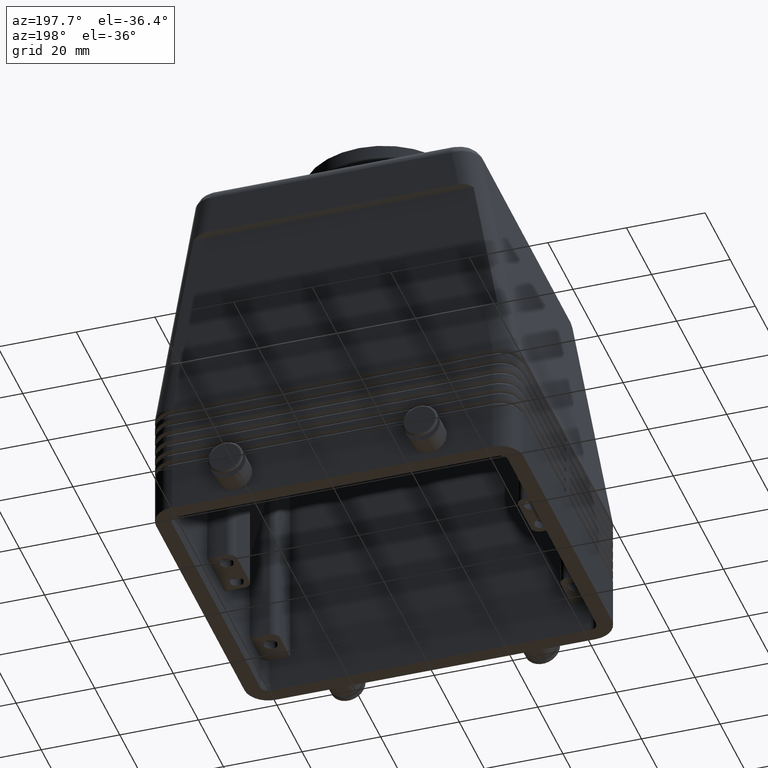
[diagram: clean part render]
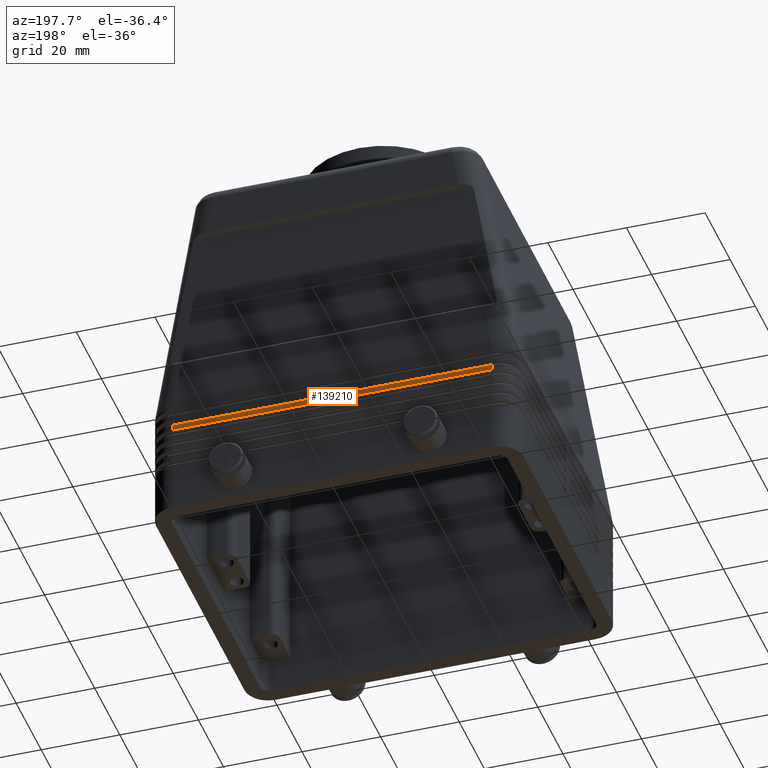
[diagram: same view with one face highlighted and labeled with its STEP entity id]
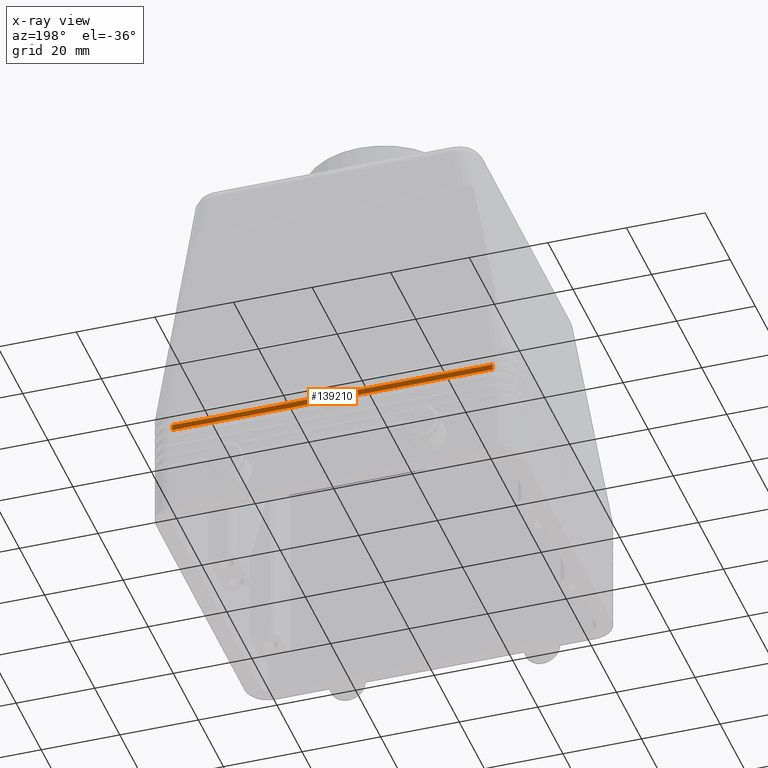
[diagram: x-ray of the same camera — body ghosted, the highlighted face saturated]
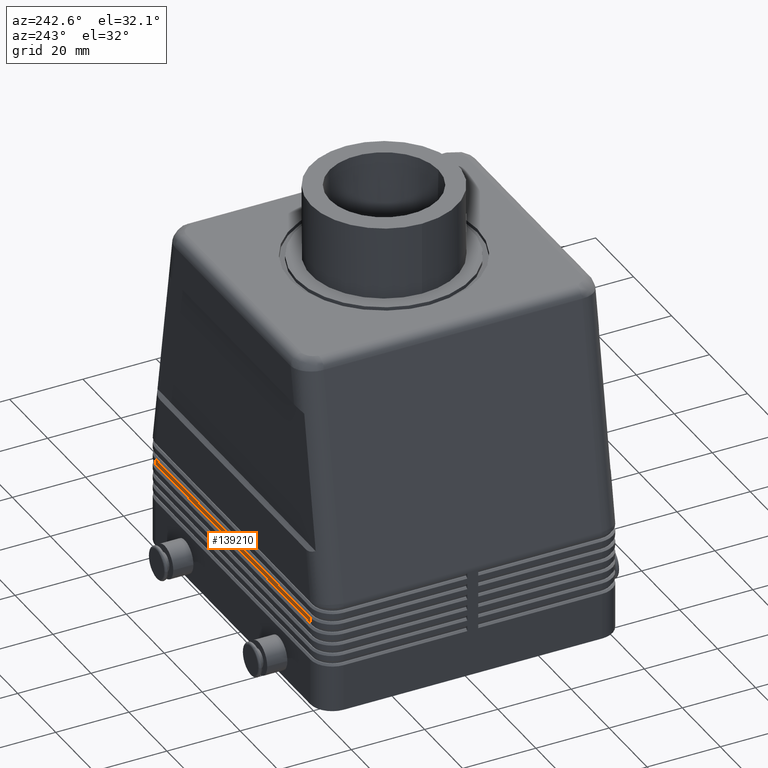
[diagram: same view with one face highlighted and labeled with its STEP entity id]
A machine part, auxiliary view. The second image highlights one B-rep face of the part: STEP entity #139210.
The next image is the same camera in x-ray: the body ghosted, the highlighted face saturated — about 0% of this face is hidden behind the body in this view.
A second angle (auxiliary view) of the same face is appended — the face is thin or edge-on in the first view.
In plain terms, the highlighted planar face has unit normal (0, 1, 0).
Its self-contained STEP definition (entity closure, byte-faithful):
#29300=CARTESIAN_POINT('',(40.75,41.25,24.75));
#29310=VERTEX_POINT('',#29300);
#29340=CARTESIAN_POINT('',(40.75,41.25,23.25));
#29350=DIRECTION('',(0.,0.,1.));
#29360=VECTOR('',#29350,1.);
#29370=LINE('',#29340,#29360);
#29380=CARTESIAN_POINT('',(40.75,41.25,23.25));
#29390=VERTEX_POINT('',#29380);
#29400=EDGE_CURVE('',#29390,#29310,#29370,.T.);
#32100=CARTESIAN_POINT('',(-40.75,41.25,23.25));
#32110=VERTEX_POINT('',#32100);
#32140=CARTESIAN_POINT('',(-40.75,41.25,24.75));
#32150=DIRECTION('',(0.,0.,-1.));
#32160=VECTOR('',#32150,1.);
#32170=LINE('',#32140,#32160);
#32180=CARTESIAN_POINT('',(-40.75,41.25,24.75));
#32190=VERTEX_POINT('',#32180);
#32200=EDGE_CURVE('',#32190,#32110,#32170,.T.);
#106180=CARTESIAN_POINT('',(0.,41.25,24.75));
#106190=DIRECTION('',(-1.,0.,0.));
#106200=VECTOR('',#106190,1.);
#106210=LINE('',#106180,#106200);
#106220=EDGE_CURVE('',#29310,#32190,#106210,.T.);
#113600=CARTESIAN_POINT('',(0.,41.25,23.25));
#113610=DIRECTION('',(1.,-0.,0.));
#113620=VECTOR('',#113610,1.);
#113630=LINE('',#113600,#113620);
#113640=EDGE_CURVE('',#32110,#29390,#113630,.T.);
#139100=CARTESIAN_POINT('',(-48.9,41.25,23.1));
#139110=DIRECTION('',(0.,1.,0.));
#139120=DIRECTION('',(1.,-0.,0.));
#139130=AXIS2_PLACEMENT_3D('',#139100,#139110,#139120);
#139140=PLANE('',#139130);
#139150=ORIENTED_EDGE('',*,*,#32200,.F.);
#139160=ORIENTED_EDGE('',*,*,#113640,.F.);
#139170=ORIENTED_EDGE('',*,*,#29400,.F.);
#139180=ORIENTED_EDGE('',*,*,#106220,.F.);
#139190=EDGE_LOOP('',(#139180,#139170,#139160,#139150));
#139200=FACE_OUTER_BOUND('',#139190,.T.);
#139210=ADVANCED_FACE('',(#139200),#139140,.T.);